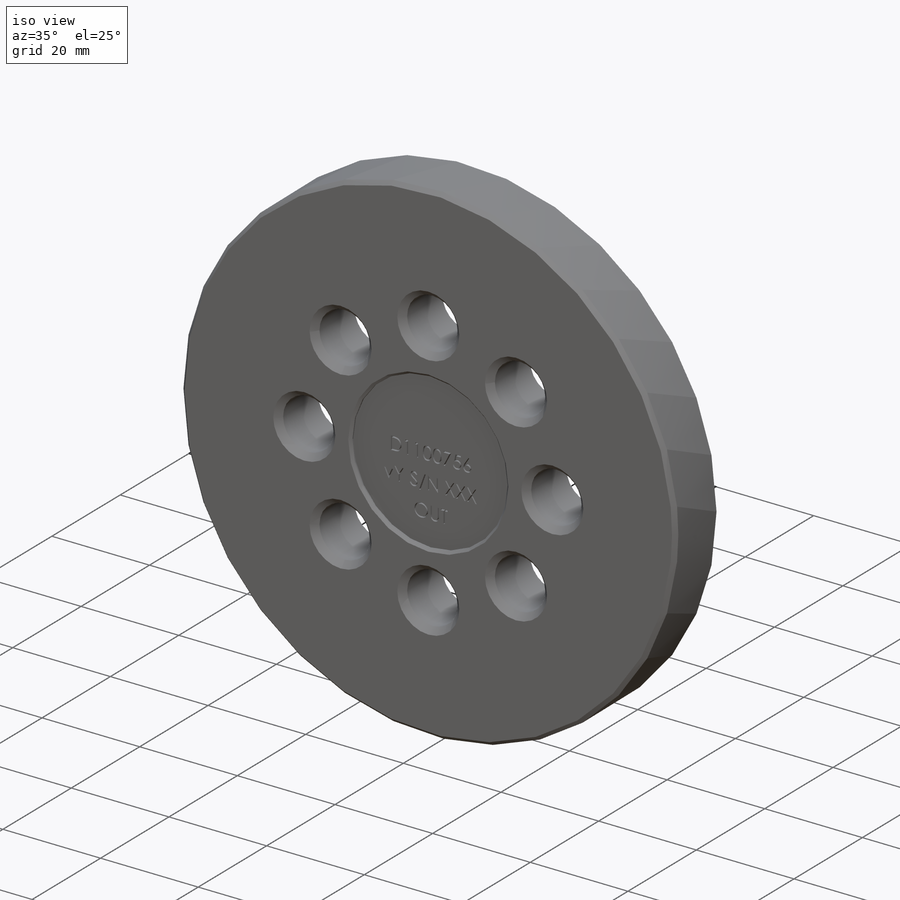
[diagram: iso view]
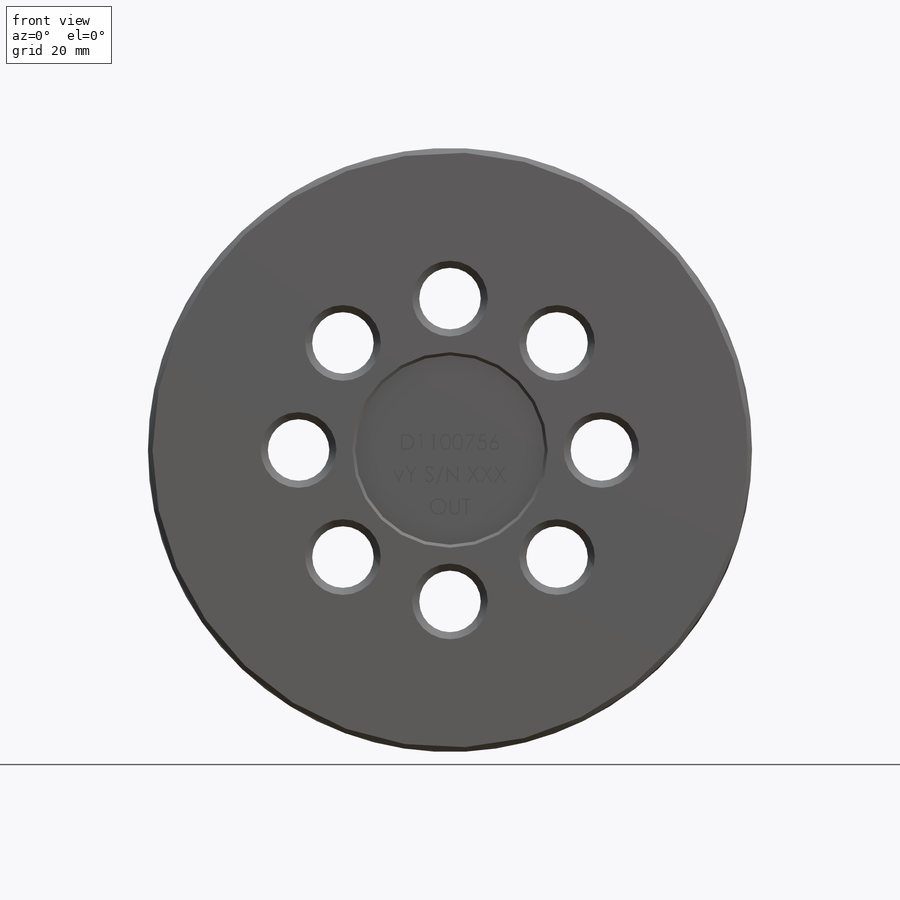
[diagram: front view]
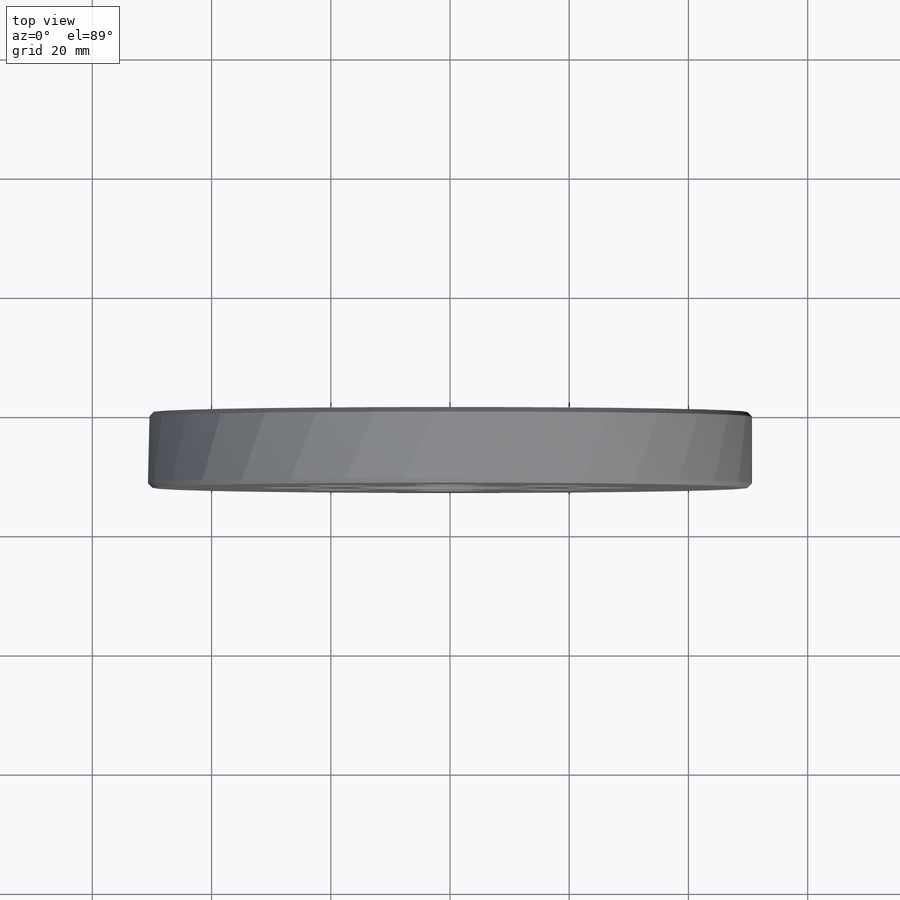
[diagram: top view]
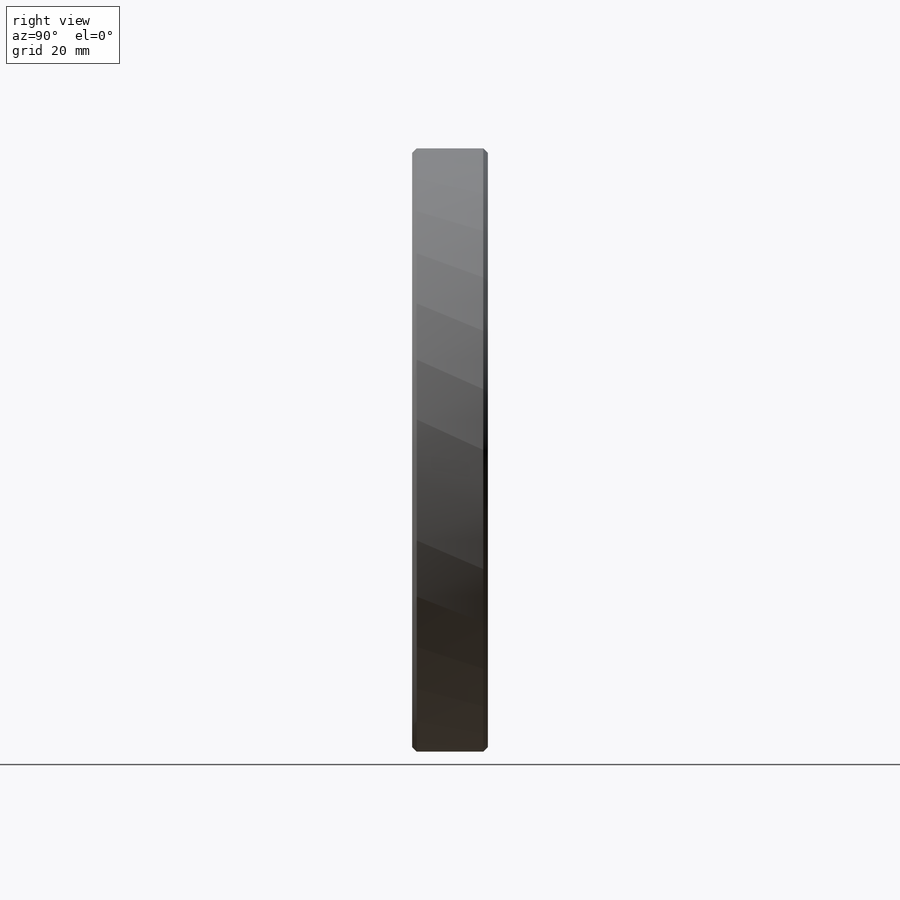
[diagram: right view]
SOLIDWORKS PART (.sldprt)
format: sldprt  version: not decoded by parser v0  size: 515,072 bytes
history: native  units: mm
features: sketch x5, chamfer x2, cut_extrude x2, material x1, extrude x1, hole x1, pattern_circular x1 + 1 further entry (+13 scaffold rows collapsed)
feature tree (27):
  scaffold x13  (default folders/planes/origin — collapsed)
  material  "304 SSTL"
  "Origin"  ID=-1
  sketch  "Sketch1"  dims[D1=101.346mm]
  extrude  "Boss-Extrude1"  Depth=12.7mm
  hole  "13/32 (0.40625) Diameter Hole1"  Diameter=10.31875mm Depth=12.7mm
  sketch  "Sketch3"  dims[D1=25.4mm]
  sketch  "Sketch2"  dims[hole-wizard template sketch: 46 standard entries collapsed; hole parameters kept: c15.Thru Hole Dia.=~10.31875mm c15.Thru Hole Depth=12.7mm c15.Near C'Sink Dia.=12.7mm c15.D4=~3.666174mm c15.Near C'Sink Angle=90.0deg c15.Far C'Sink Dia.=12.7mm c15.D6=~9.919017mm c15.Far C'Sink Angle=90.0deg]
  pattern_circular  "CirPattern1"  Count=8 Angle=360deg
  chamfer  "Chamfer1"  Distance=0.762mm Angle=45deg
  sketch  "Sketch4"
  cut_extrude  "Cut-Extrude2"  Depth=0.762mm
  chamfer  "Chamfer2"  Distance=0.508mm Angle=45deg
  sketch  "Sketch6"
  cut_extrude  "Cut-Extrude3"  Depth=0.508mm
decode coverage: 10 of 12 modeling features carry decoded parameters; 1 rows unclassified (native names shown)
note: ~ marks probable driven/reference dimensions
note: suppression state not decoded; provenance and decode notes live in map.json
